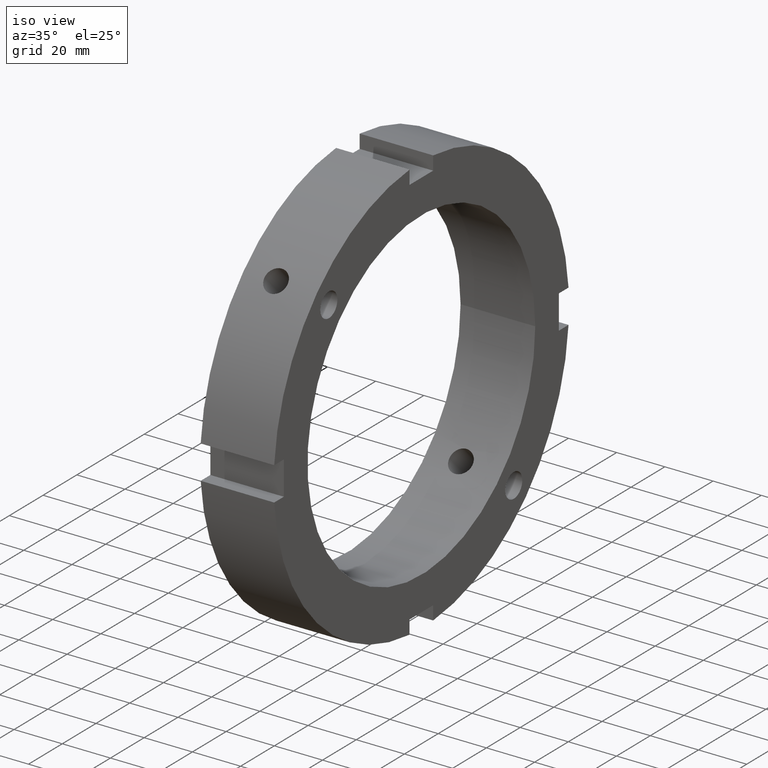
[diagram: clean part render]
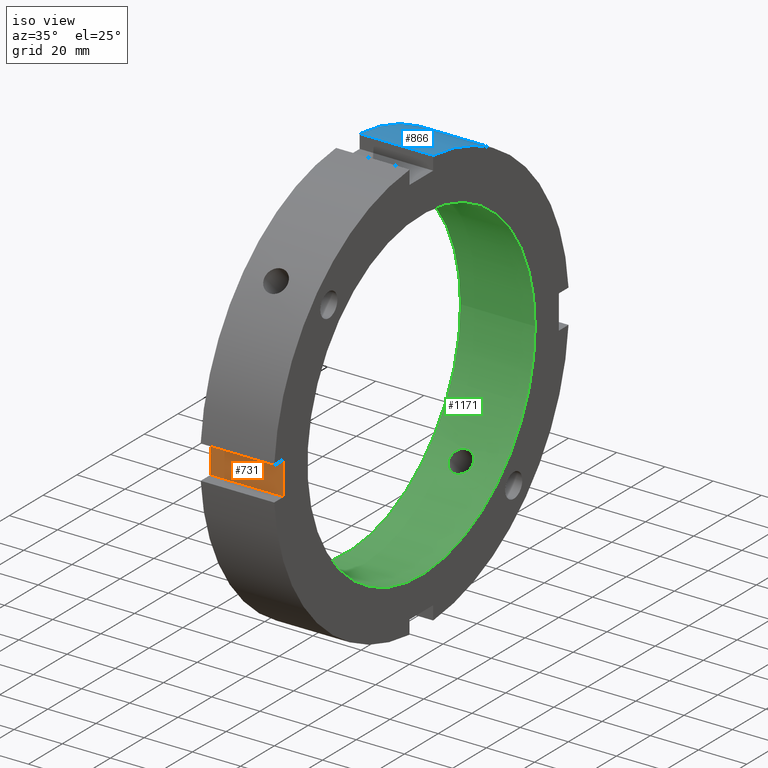
[diagram: same view with three faces highlighted in distinct colors, each labeled with its STEP entity id]
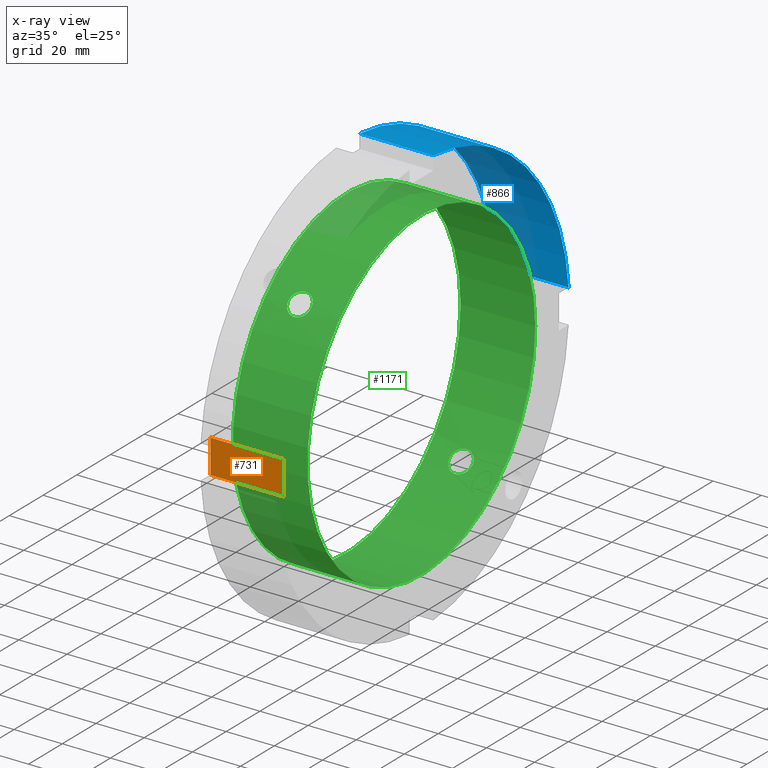
[diagram: x-ray of the same camera — body ghosted, the three highlighted faces saturated]
A machine part, iso view with three faces highlighted in distinct colors.
The next image is the same camera in x-ray (body ghosted, the three faces saturated) — at least one of them is partly hidden behind the body in this view.
Their STEP definitions:

[orange] entity #731 — the highlighted planar face has unit normal (0, 1, 0).
#635=CARTESIAN_POINT('',(0.499999999999976,-81.5,7.000000000000006));
#636=VERTEX_POINT('',#635);
#645=CARTESIAN_POINT('',(30.999999999999979,-81.5,7.000000000000006));
#646=VERTEX_POINT('',#645);
#647=CARTESIAN_POINT('',(30.999999999999979,-81.5,7.000000000000006));
#648=DIRECTION('',(-1.0,0.0,0.0));
#649=VECTOR('',#648,30.500000000000004);
#650=LINE('',#647,#649);
#651=EDGE_CURVE('',#646,#636,#650,.T.);
#677=CARTESIAN_POINT('',(0.499999999999976,-81.5,-6.999999999999989));
#678=VERTEX_POINT('',#677);
#693=CARTESIAN_POINT('',(30.999999999999979,-81.5,-6.999999999999989));
#694=VERTEX_POINT('',#693);
#701=CARTESIAN_POINT('',(30.999999999999979,-81.5,-6.999999999999989));
#702=DIRECTION('',(-1.0,0.0,0.0));
#703=VECTOR('',#702,30.500000000000004);
#704=LINE('',#701,#703);
#705=EDGE_CURVE('',#694,#678,#704,.T.);
#710=CARTESIAN_POINT('',(30.999999999999979,-81.5,-6.999999999999989));
#711=DIRECTION('',(0.0,1.0,0.0));
#712=DIRECTION('',(0.0,0.0,1.0));
#713=AXIS2_PLACEMENT_3D('',#710,#711,#712);
#714=PLANE('',#713);
#715=CARTESIAN_POINT('',(0.499999999999976,-81.499999999999986,-6.999999999999989));
#716=DIRECTION('',(0.0,0.0,1.0));
#717=VECTOR('',#716,13.999999999999993);
#718=LINE('',#715,#717);
#719=EDGE_CURVE('',#678,#636,#718,.T.);
#720=ORIENTED_EDGE('',*,*,#719,.F.);
#721=ORIENTED_EDGE('',*,*,#705,.F.);
#722=CARTESIAN_POINT('',(30.999999999999979,-81.5,7.000000000000005));
#723=DIRECTION('',(0.0,0.0,-1.0));
#724=VECTOR('',#723,13.999999999999993);
#725=LINE('',#722,#724);
#726=EDGE_CURVE('',#646,#694,#725,.T.);
#727=ORIENTED_EDGE('',*,*,#726,.F.);
#728=ORIENTED_EDGE('',*,*,#651,.T.);
#729=EDGE_LOOP('',(#720,#721,#727,#728));
#730=FACE_OUTER_BOUND('',#729,.T.);
#731=ADVANCED_FACE('',(#730),#714,.F.);

[blue] entity #866 — the highlighted cylindrical surface (partial cylindrical patch) has radius 87.5 mm, axis along (1, 0, 0).
#739=CARTESIAN_POINT('',(0.499999999999976,7.000000000000002,87.219550560639789));
#740=VERTEX_POINT('',#739);
#755=CARTESIAN_POINT('',(30.999999999999979,7.000000000000001,87.219550560639789));
#756=VERTEX_POINT('',#755);
#763=CARTESIAN_POINT('',(0.499999999999975,7.000000000000001,87.219550560639789));
#764=DIRECTION('',(1.0,0.0,0.0));
#765=VECTOR('',#764,30.500000000000004);
#766=LINE('',#763,#765);
#767=EDGE_CURVE('',#740,#756,#766,.T.);
#834=CARTESIAN_POINT('',(15.749999999999977,0.0,0.0));
#835=DIRECTION('',(1.0,0.0,0.0));
#836=DIRECTION('',(0.0,1.0,0.0));
#837=AXIS2_PLACEMENT_3D('',#834,#835,#836);
#838=CYLINDRICAL_SURFACE('',#837,87.5);
#839=ORIENTED_EDGE('',*,*,#767,.T.);
#840=CARTESIAN_POINT('',(30.999999999999979,87.219550560639789,6.999999999999996));
#841=VERTEX_POINT('',#840);
#842=CARTESIAN_POINT('',(30.999999999999979,0.0,0.0));
#843=DIRECTION('',(1.0,0.0,0.0));
#844=DIRECTION('',(0.0,1.0,0.0));
#845=AXIS2_PLACEMENT_3D('',#842,#843,#844);
#846=CIRCLE('',#845,87.5);
#847=EDGE_CURVE('',#841,#756,#846,.T.);
#848=ORIENTED_EDGE('',*,*,#847,.F.);
#849=CARTESIAN_POINT('',(0.499999999999976,87.219550560639789,6.999999999999995));
#850=VERTEX_POINT('',#849);
#851=CARTESIAN_POINT('',(30.999999999999979,87.219550560639789,6.999999999999995));
#852=DIRECTION('',(-1.0,0.0,0.0));
#853=VECTOR('',#852,30.500000000000004);
#854=LINE('',#851,#853);
#855=EDGE_CURVE('',#841,#850,#854,.T.);
#856=ORIENTED_EDGE('',*,*,#855,.T.);
#857=CARTESIAN_POINT('',(0.499999999999976,0.0,0.0));
#858=DIRECTION('',(1.0,0.0,0.0));
#859=DIRECTION('',(0.0,1.0,0.0));
#860=AXIS2_PLACEMENT_3D('',#857,#858,#859);
#861=CIRCLE('',#860,87.5);
#862=EDGE_CURVE('',#850,#740,#861,.T.);
#863=ORIENTED_EDGE('',*,*,#862,.T.);
#864=EDGE_LOOP('',(#839,#848,#856,#863));
#865=FACE_OUTER_BOUND('',#864,.T.);
#866=ADVANCED_FACE('',(#865),#838,.T.);

[green] entity #1171 — the highlighted cylindrical surface (bore or boss wall) has radius 67.5 mm, axis along (1, 0, 0).
#256=CARTESIAN_POINT('',(13.999999999999982,-51.002987772704003,44.214762673313153));
#257=VERTEX_POINT('',#256);
#258=CARTESIAN_POINT('',(13.999999999999982,-51.002987772703996,44.214762673313146));
#259=CARTESIAN_POINT('',(14.602917299244906,-51.002987772703996,44.214762673313146));
#260=CARTESIAN_POINT('',(15.245882676211016,-50.924072777112919,44.306309681181176));
#261=CARTESIAN_POINT('',(16.428443147589711,-50.600454674040563,44.675544231962135));
#262=CARTESIAN_POINT('',(16.968055546165743,-50.355429678013017,44.952894085277315));
#263=CARTESIAN_POINT('',(17.820169184109417,-49.783230094725269,45.585765165452571));
#264=CARTESIAN_POINT('',(18.189544266543162,-49.417810973283181,45.983473448874676));
#265=CARTESIAN_POINT('',(18.679465299786223,-48.604381459775887,46.842437753851094));
#266=CARTESIAN_POINT('',(18.799999999999979,-48.156034271533237,47.303381188650668));
#267=CARTESIAN_POINT('',(18.799999999999983,-47.303381188650668,48.156034271533237));
#268=CARTESIAN_POINT('',(18.679465299786226,-46.842437753851115,48.604381459775887));
#269=CARTESIAN_POINT('',(18.189544266543184,-45.98347344887469,49.417810973283181));
#270=CARTESIAN_POINT('',(17.820169184109414,-45.585765165452578,49.783230094725226));
#271=CARTESIAN_POINT('',(16.968055546165751,-44.952894085277322,50.355429678012982));
#272=CARTESIAN_POINT('',(16.428443147589736,-44.675544231962121,50.600454674040584));
#273=CARTESIAN_POINT('',(15.245882676211036,-44.306309681181162,50.924072777112947));
#274=CARTESIAN_POINT('',(14.602917299244913,-44.214762673313132,51.002987772704024));
#275=CARTESIAN_POINT('',(13.397082700755051,-44.214762673313132,51.002987772704024));
#276=CARTESIAN_POINT('',(12.754117323788927,-44.306309681181162,50.924072777112947));
#277=CARTESIAN_POINT('',(11.571556852410227,-44.675544231962121,50.600454674040584));
#278=CARTESIAN_POINT('',(11.031944453834212,-44.952894085277322,50.355429678012982));
#279=CARTESIAN_POINT('',(10.179830815890549,-45.585765165452578,49.783230094725226));
#280=CARTESIAN_POINT('',(9.810455733456777,-45.98347344887469,49.417810973283181));
#281=CARTESIAN_POINT('',(9.320534700213738,-46.842437753851115,48.604381459775887));
#282=CARTESIAN_POINT('',(9.19999999999998,-47.303381188650668,48.156034271533237));
#283=CARTESIAN_POINT('',(9.199999999999983,-48.156034271533237,47.30338118865069));
#284=CARTESIAN_POINT('',(9.320534700213742,-48.60438145977588,46.842437753851129));
#285=CARTESIAN_POINT('',(9.810455733456784,-49.417810973283167,45.983473448874712));
#286=CARTESIAN_POINT('',(10.179830815890551,-49.783230094725219,45.585765165452585));
#287=CARTESIAN_POINT('',(11.031944453834214,-50.355429678012975,44.952894085277322));
#288=CARTESIAN_POINT('',(11.571556852410247,-50.600454674040577,44.675544231962135));
#289=CARTESIAN_POINT('',(12.754117323788947,-50.92407277711294,44.306309681181176));
#290=CARTESIAN_POINT('',(13.39708270075505,-51.002987772703996,44.214762673313146));
#291=CARTESIAN_POINT('',(13.999999999999979,-51.002987772703996,44.214762673313146));
#292=B_SPLINE_CURVE_WITH_KNOTS('',3,(#258,#259,#260,#261,#262,#263,#264,#265,#266,#267,#268,#269,#270,#271,#272,#273,#274,#275,#276,#277,#278,#279,#280,#281,#282,#283,#284,#285,#286,#287,#288,#289,#290,#291),.UNSPECIFIED.,.T.,.U.,(4,2,2,2,2,2,2,2,2,2,2,2,2,2,2,2,4),(0.0,0.180875189773478,0.361750379546955,0.54262541261872,0.723500445690484,0.904375478762246,1.085250511834009,1.266125701607487,1.447000891380966,1.627876081154445,1.808751270927924,1.989626303999686,2.170501337071448,2.35137637014321,2.532251403214972,2.713126592988451,2.89400178276193),.UNSPECIFIED.);
#293=EDGE_CURVE('',#257,#257,#292,.T.);
#486=CARTESIAN_POINT('',(13.999999999999982,44.214762673313146,-51.002987772704017));
#487=VERTEX_POINT('',#486);
#488=CARTESIAN_POINT('',(13.999999999999982,44.214762673313139,-51.002987772704017));
#489=CARTESIAN_POINT('',(13.397082700755051,44.214762673313139,-51.002987772704017));
#490=CARTESIAN_POINT('',(12.754117323788927,44.306309681181162,-50.924072777112947));
#491=CARTESIAN_POINT('',(11.571556852410227,44.675544231962121,-50.600454674040584));
#492=CARTESIAN_POINT('',(11.031944453834212,44.952894085277322,-50.355429678012982));
#493=CARTESIAN_POINT('',(10.179830815890549,45.585765165452578,-49.783230094725226));
#494=CARTESIAN_POINT('',(9.810455733456779,45.98347344887469,-49.417810973283181));
#495=CARTESIAN_POINT('',(9.32053470021374,46.842437753851115,-48.604381459775887));
#496=CARTESIAN_POINT('',(9.19999999999998,47.303381188650668,-48.156034271533237));
#497=CARTESIAN_POINT('',(9.199999999999983,48.156034271533237,-47.30338118865069));
#498=CARTESIAN_POINT('',(9.320534700213734,48.604381459775858,-46.842437753851122));
#499=CARTESIAN_POINT('',(9.810455733456774,49.41781097328316,-45.983473448874705));
#500=CARTESIAN_POINT('',(10.179830815890551,49.783230094725219,-45.585765165452585));
#501=CARTESIAN_POINT('',(11.031944453834214,50.355429678012975,-44.952894085277322));
#502=CARTESIAN_POINT('',(11.571556852410232,50.600454674040563,-44.675544231962128));
#503=CARTESIAN_POINT('',(12.754117323788927,50.924072777112926,-44.306309681181169));
#504=CARTESIAN_POINT('',(13.397082700755051,51.002987772704017,-44.214762673313139));
#505=CARTESIAN_POINT('',(14.602917299244908,51.002987772704017,-44.214762673313139));
#506=CARTESIAN_POINT('',(15.245882676211021,50.924072777112919,-44.306309681181176));
#507=CARTESIAN_POINT('',(16.428443147589714,50.600454674040563,-44.675544231962135));
#508=CARTESIAN_POINT('',(16.968055546165743,50.355429678013017,-44.952894085277315));
#509=CARTESIAN_POINT('',(17.820169184109417,49.783230094725269,-45.585765165452571));
#510=CARTESIAN_POINT('',(18.189544266543162,49.417810973283181,-45.983473448874676));
#511=CARTESIAN_POINT('',(18.679465299786223,48.60438145977588,-46.842437753851101));
#512=CARTESIAN_POINT('',(18.799999999999983,48.156034271533237,-47.303381188650675));
#513=CARTESIAN_POINT('',(18.799999999999983,47.303381188650675,-48.156034271533237));
#514=CARTESIAN_POINT('',(18.679465299786223,46.842437753851101,-48.60438145977588));
#515=CARTESIAN_POINT('',(18.189544266543184,45.983473448874683,-49.417810973283174));
#516=CARTESIAN_POINT('',(17.82016918410941,45.585765165452585,-49.783230094725226));
#517=CARTESIAN_POINT('',(16.968055546165747,44.952894085277322,-50.355429678012982));
#518=CARTESIAN_POINT('',(16.428443147589732,44.675544231962121,-50.600454674040584));
#519=CARTESIAN_POINT('',(15.245882676211032,44.306309681181162,-50.924072777112947));
#520=CARTESIAN_POINT('',(14.602917299244906,44.214762673313139,-51.002987772704017));
#521=CARTESIAN_POINT('',(13.999999999999979,44.214762673313139,-51.002987772704017));
#522=B_SPLINE_CURVE_WITH_KNOTS('',3,(#488,#489,#490,#491,#492,#493,#494,#495,#496,#497,#498,#499,#500,#501,#502,#503,#504,#505,#506,#507,#508,#509,#510,#511,#512,#513,#514,#515,#516,#517,#518,#519,#520,#521),.UNSPECIFIED.,.T.,.U.,(4,2,2,2,2,2,2,2,2,2,2,2,2,2,2,2,4),(0.0,0.180875189773479,0.361750379546958,0.54262541261872,0.723500445690482,0.904375478762244,1.085250511834006,1.266125701607485,1.447000891380964,1.627876081154441,1.808751270927918,1.989626303999683,2.170501337071447,2.35137637014321,2.532251403214972,2.713126592988451,2.89400178276193),.UNSPECIFIED.);
#523=EDGE_CURVE('',#487,#487,#522,.T.);
#1002=CARTESIAN_POINT('',(30.999999999999982,67.5,0.0));
#1003=VERTEX_POINT('',#1002);
#1004=CARTESIAN_POINT('',(30.999999999999982,0.0,0.0));
#1005=DIRECTION('',(1.0,0.0,0.0));
#1006=DIRECTION('',(0.0,1.0,0.0));
#1007=AXIS2_PLACEMENT_3D('',#1004,#1005,#1006);
#1008=CIRCLE('',#1007,67.5);
#1009=EDGE_CURVE('',#1003,#1003,#1008,.T.);
#1095=CARTESIAN_POINT('',(-1.977226E-014,67.5,0.0));
#1096=VERTEX_POINT('',#1095);
#1097=CARTESIAN_POINT('',(-1.977151E-014,0.0,0.0));
#1098=DIRECTION('',(1.0,0.0,0.0));
#1099=DIRECTION('',(0.0,1.0,0.0));
#1100=AXIS2_PLACEMENT_3D('',#1097,#1098,#1099);
#1101=CIRCLE('',#1100,67.5);
#1102=EDGE_CURVE('',#1096,#1096,#1101,.T.);
#1154=CARTESIAN_POINT('',(15.499999999999982,0.0,0.0));
#1155=DIRECTION('',(1.0,0.0,0.0));
#1156=DIRECTION('',(0.0,1.0,0.0));
#1157=AXIS2_PLACEMENT_3D('',#1154,#1155,#1156);
#1158=CYLINDRICAL_SURFACE('',#1157,67.5);
#1159=ORIENTED_EDGE('',*,*,#1102,.F.);
#1160=EDGE_LOOP('',(#1159));
#1161=FACE_OUTER_BOUND('',#1160,.T.);
#1162=ORIENTED_EDGE('',*,*,#293,.T.);
#1163=EDGE_LOOP('',(#1162));
#1164=FACE_BOUND('',#1163,.T.);
#1165=ORIENTED_EDGE('',*,*,#523,.T.);
#1166=EDGE_LOOP('',(#1165));
#1167=FACE_BOUND('',#1166,.T.);
#1168=ORIENTED_EDGE('',*,*,#1009,.T.);
#1169=EDGE_LOOP('',(#1168));
#1170=FACE_BOUND('',#1169,.T.);
#1171=ADVANCED_FACE('',(#1161,#1164,#1167,#1170),#1158,.F.);